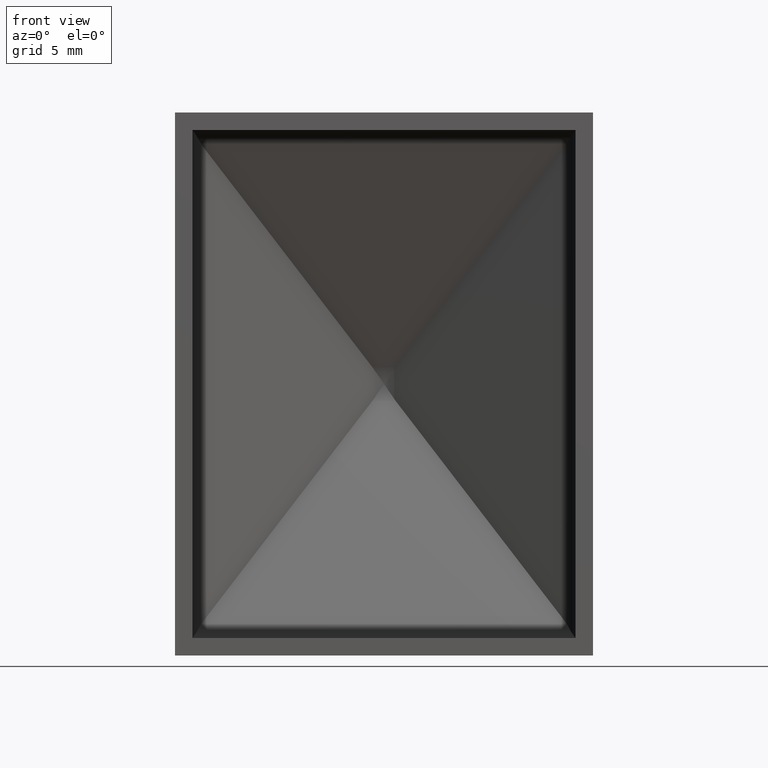
[diagram: clean part render]
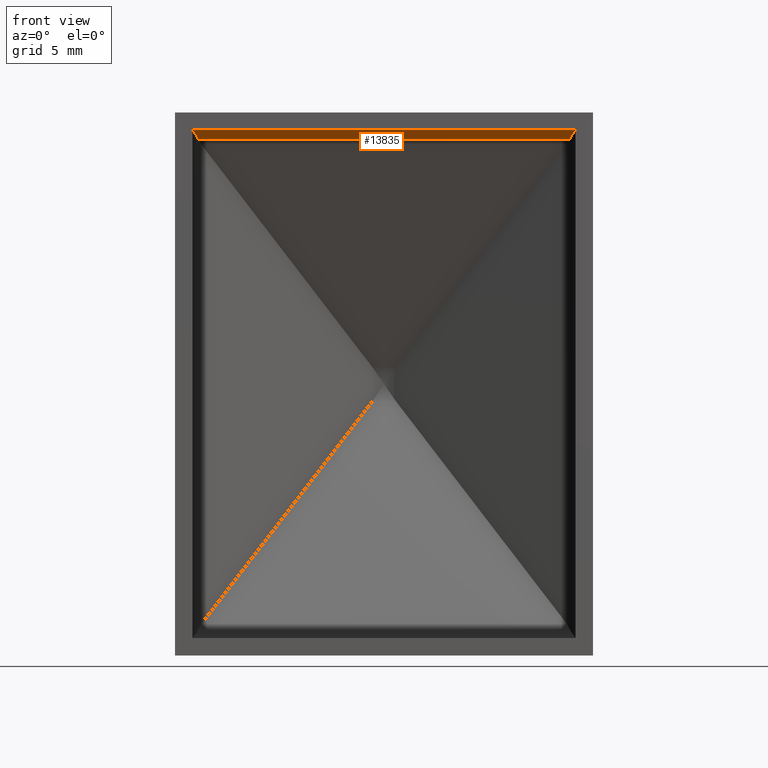
[diagram: same view with one face highlighted and labeled with its STEP entity id]
A machine part, front view. The second image highlights one B-rep face of the part: STEP entity #13835.
In plain terms, the highlighted cylindrical surface (edge-blend (fillet) strip) has radius 1.2544 mm, axis along (1, 0, -0).
Its self-contained STEP definition (entity closure, byte-faithful):
#919 = EDGE_CURVE ( 'NONE', #10135, #2131, #4051, .T. ) ;
#1191 = CARTESIAN_POINT ( 'NONE',  ( 15.34999999999999609, 9.423250989925206156, 20.35000000000000142 ) ) ;
#1248 = CARTESIAN_POINT ( 'NONE',  ( 14.87229824412478507, 10.43686438088137791, 19.61814305772314171 ) ) ;
#1308 = CARTESIAN_POINT ( 'NONE',  ( 15.27769235868910691, 9.787415655783222590, 20.25659684993977550 ) ) ;
#1778 = ORIENTED_EDGE ( 'NONE', *, *, #15611, .T. ) ;
#2032 = CARTESIAN_POINT ( 'NONE',  ( -15.14237450061064649, 10.09232732462494653, 20.07247944126415362 ) ) ;
#2131 = VERTEX_POINT ( 'NONE', #11335 ) ;
#2532 = CARTESIAN_POINT ( 'NONE',  ( 14.97819299317603381, 10.32605531236021257, 19.82118484461140540 ) ) ;
#3384 = CARTESIAN_POINT ( 'NONE',  ( -15.23804731063724205, 9.894635276344919461, 20.20459745980272004 ) ) ;
#3909 = CARTESIAN_POINT ( 'NONE',  ( 15.34999999999999609, 9.296493103079967568, 20.35000000000000142 ) ) ;
#4051 = B_SPLINE_CURVE_WITH_KNOTS ( 'NONE', 3,
 ( #15825, #14776, #5678, #7016, #2032, #3384, #14176, #6259, #9177, #17199 ),
 .UNSPECIFIED., .F., .F.,
 ( 4, 2, 2, 2, 4 ),
 ( 0.007473035587638262103, 0.007852077891656525366, 0.008231120195674788628, 0.008610162499693051891, 0.008989204803711315153 ),
 .UNSPECIFIED. ) ;
#4791 = CARTESIAN_POINT ( 'NONE',  ( 14.87229824412478507, 10.43686438088137791, 19.61814305772314171 ) ) ;
#5185 = LINE ( 'NONE', #8150, #9770 ) ;
#5259 = CARTESIAN_POINT ( 'NONE',  ( -26.75000000000000355, 9.296493103079908948, 19.09561466242217875 ) ) ;
#5325 = DIRECTION ( 'NONE',  ( 0.000000000000000000, 1.000000000000000000, 0.000000000000000000 ) ) ;
#5549 = VERTEX_POINT ( 'NONE', #4791 ) ;
#5678 = CARTESIAN_POINT ( 'NONE',  ( -14.97827143062366595, 10.32600729095936920, 19.82134462968860333 ) ) ;
#6259 = CARTESIAN_POINT ( 'NONE',  ( -15.33466010626163900, 9.548929487481535361, 20.33059636364347966 ) ) ;
#6451 = CARTESIAN_POINT ( 'NONE',  ( 15.34999999999999609, 9.296493103079967568, 20.35000000000000142 ) ) ;
#7016 = CARTESIAN_POINT ( 'NONE',  ( -15.08869327799758153, 10.17765737708077012, 19.99568853197853002 ) ) ;
#7151 = EDGE_CURVE ( 'NONE', #2131, #15782, #17187, .T. ) ;
#7327 = ORIENTED_EDGE ( 'NONE', *, *, #7151, .F. ) ;
#8150 = CARTESIAN_POINT ( 'NONE',  ( -26.75000000000001066, 10.43686438088132995, 19.61814305772312395 ) ) ;
#8189 = ORIENTED_EDGE ( 'NONE', *, *, #919, .F. ) ;
#8744 = CYLINDRICAL_SURFACE ( 'NONE', #10158, 1.254385337577820003 ) ;
#9041 = EDGE_LOOP ( 'NONE', ( #12754, #7327, #8189, #1778 ) ) ;
#9177 = CARTESIAN_POINT ( 'NONE',  ( -15.34999999999999964, 9.423924627749871163, 20.35000000000000497 ) ) ;
#9419 = CARTESIAN_POINT ( 'NONE',  ( 15.08806224348648328, 10.17856215016225185, 19.99472790792547627 ) ) ;
#9770 = VECTOR ( 'NONE', #12028, 1000.000000000000000 ) ;
#10135 = VERTEX_POINT ( 'NONE', #10431 ) ;
#10158 = AXIS2_PLACEMENT_3D ( 'NONE', #5259, #14664, #5325 ) ;
#10431 = CARTESIAN_POINT ( 'NONE',  ( -14.87229824412480994, 10.43686438088134238, 19.61814305772313105 ) ) ;
#10621 = EDGE_CURVE ( 'NONE', #15782, #5549, #11850, .T. ) ;
#11335 = CARTESIAN_POINT ( 'NONE',  ( -15.34999999999999076, 9.296493103079916054, 20.35000000000000142 ) ) ;
#11630 = FACE_OUTER_BOUND ( 'NONE', #9041, .T. ) ;
#11850 = B_SPLINE_CURVE_WITH_KNOTS ( 'NONE', 3,
 ( #3909, #1191, #17254, #1308, #14582, #15930, #9419, #2532, #14643, #1248 ),
 .UNSPECIFIED., .F., .F.,
 ( 4, 2, 2, 2, 4 ),
 ( 0.007746781777780977103, 0.008124562980908318216, 0.008502344184035658461, 0.008880125387162998707, 0.009257906590290338952 ),
 .UNSPECIFIED. ) ;
#12028 = DIRECTION ( 'NONE',  ( 1.000000000000000000, 1.131893862294555804E-15, 5.186439671262600458E-16 ) ) ;
#12754 = ORIENTED_EDGE ( 'NONE', *, *, #10621, .F. ) ;
#13447 = CARTESIAN_POINT ( 'NONE',  ( -26.75000000000000355, 9.296493103079908948, 20.35000000000000142 ) ) ;
#13835 = ADVANCED_FACE ( 'NONE', ( #11630 ), #8744, .F. ) ;
#14176 = CARTESIAN_POINT ( 'NONE',  ( -15.27809645997709609, 9.786179726904174814, 20.25712701318253295 ) ) ;
#14582 = CARTESIAN_POINT ( 'NONE',  ( 15.23673162592563379, 9.897544153062598937, 20.20280254058178926 ) ) ;
#14643 = CARTESIAN_POINT ( 'NONE',  ( 14.92179134413680153, 10.38815566616622554, 19.72444545150556294 ) ) ;
#14664 = DIRECTION ( 'NONE',  ( 1.000000000000000000, 1.369541201499284725E-15, -0.000000000000000000 ) ) ;
#14776 = CARTESIAN_POINT ( 'NONE',  ( -14.92166758219849498, 10.38827746667869434, 19.72417963282981290 ) ) ;
#15532 = VECTOR ( 'NONE', #16101, 1000.000000000000000 ) ;
#15611 = EDGE_CURVE ( 'NONE', #10135, #5549, #5185, .T. ) ;
#15782 = VERTEX_POINT ( 'NONE', #6451 ) ;
#15825 = CARTESIAN_POINT ( 'NONE',  ( -14.87229824412480994, 10.43686438088134238, 19.61814305772313105 ) ) ;
#15930 = CARTESIAN_POINT ( 'NONE',  ( 15.14261214394904798, 10.09164384900071454, 20.07278540159239455 ) ) ;
#16101 = DIRECTION ( 'NONE',  ( 1.000000000000000000, 1.369541201499284725E-15, -0.000000000000000000 ) ) ;
#17187 = LINE ( 'NONE', #13447, #15532 ) ;
#17199 = CARTESIAN_POINT ( 'NONE',  ( -15.34999999999999076, 9.296493103079916054, 20.35000000000000142 ) ) ;
#17254 = CARTESIAN_POINT ( 'NONE',  ( 15.33441837818005737, 9.550397215758474445, 20.33028761266073658 ) ) ;